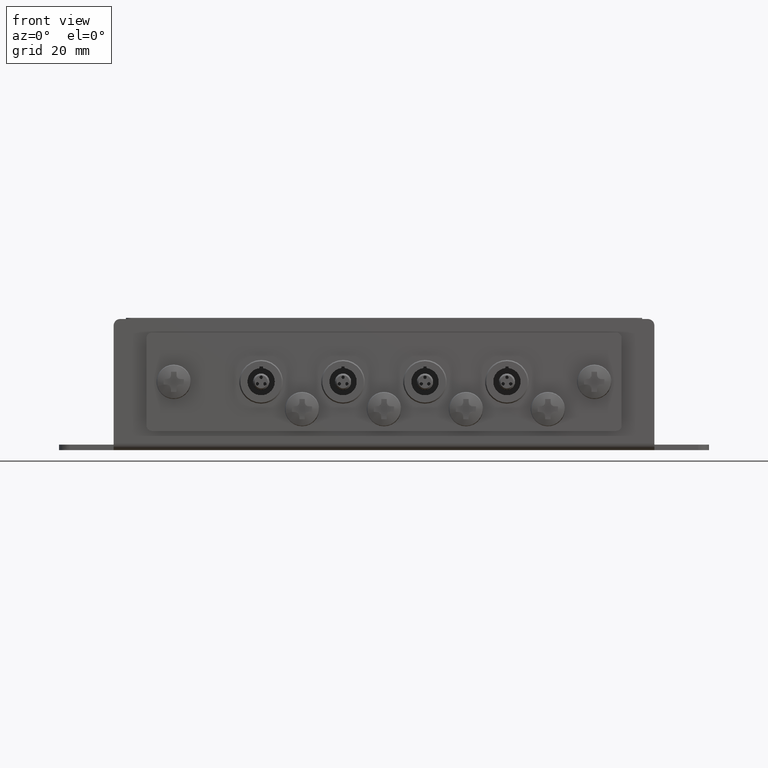
[diagram: clean part render]
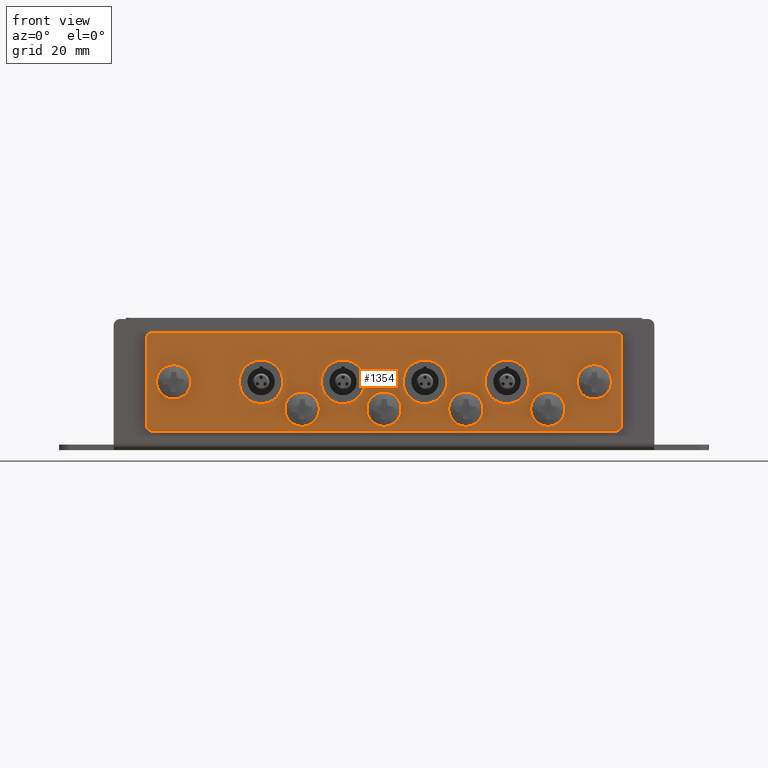
[diagram: same view with one face highlighted and labeled with its STEP entity id]
A machine part, front view. The second image highlights one B-rep face of the part: STEP entity #1354.
In plain terms, the highlighted planar face has unit normal (-0, 1, 0).
Its self-contained STEP definition (entity closure, byte-faithful):
#1354 = ADVANCED_FACE( '', ( #2887, #2888, #2889, #2890, #2891, #2892, #2893, #2894, #2895, #2896, #2897 ), #2898, .F. );
#2887 = FACE_BOUND( '', #4522, .T. );
#2888 = FACE_BOUND( '', #4523, .T. );
#2889 = FACE_BOUND( '', #4524, .T. );
#2890 = FACE_BOUND( '', #4525, .T. );
#2891 = FACE_BOUND( '', #4526, .T. );
#2892 = FACE_BOUND( '', #4527, .T. );
#2893 = FACE_BOUND( '', #4528, .T. );
#2894 = FACE_BOUND( '', #4529, .T. );
#2895 = FACE_OUTER_BOUND( '', #4530, .T. );
#2896 = FACE_BOUND( '', #4531, .T. );
#2897 = FACE_BOUND( '', #4532, .T. );
#2898 = PLANE( '', #4533 );
#4522 = EDGE_LOOP( '', ( #8486 ) );
#4523 = EDGE_LOOP( '', ( #8487 ) );
#4524 = EDGE_LOOP( '', ( #8488 ) );
#4525 = EDGE_LOOP( '', ( #8489 ) );
#4526 = EDGE_LOOP( '', ( #8490 ) );
#4527 = EDGE_LOOP( '', ( #8491 ) );
#4528 = EDGE_LOOP( '', ( #8492 ) );
#4529 = EDGE_LOOP( '', ( #8493 ) );
#4530 = EDGE_LOOP( '', ( #8494, #8495, #8496, #8497, #8498, #8499, #8500, #8501 ) );
#4531 = EDGE_LOOP( '', ( #8502 ) );
#4532 = EDGE_LOOP( '', ( #8503 ) );
#4533 = AXIS2_PLACEMENT_3D( '', #8504, #8505, #8506 );
#8486 = ORIENTED_EDGE( '', *, *, #9854, .T. );
#8487 = ORIENTED_EDGE( '', *, *, #9231, .T. );
#8488 = ORIENTED_EDGE( '', *, *, #9566, .T. );
#8489 = ORIENTED_EDGE( '', *, *, #9423, .T. );
#8490 = ORIENTED_EDGE( '', *, *, #10608, .T. );
#8491 = ORIENTED_EDGE( '', *, *, #10816, .T. );
#8492 = ORIENTED_EDGE( '', *, *, #10761, .F. );
#8493 = ORIENTED_EDGE( '', *, *, #10621, .F. );
#8494 = ORIENTED_EDGE( '', *, *, #10549, .F. );
#8495 = ORIENTED_EDGE( '', *, *, #10338, .F. );
#8496 = ORIENTED_EDGE( '', *, *, #10421, .F. );
#8497 = ORIENTED_EDGE( '', *, *, #10636, .F. );
#8498 = ORIENTED_EDGE( '', *, *, #10817, .F. );
#8499 = ORIENTED_EDGE( '', *, *, #10280, .F. );
#8500 = ORIENTED_EDGE( '', *, *, #10763, .F. );
#8501 = ORIENTED_EDGE( '', *, *, #10265, .F. );
#8502 = ORIENTED_EDGE( '', *, *, #10661, .F. );
#8503 = ORIENTED_EDGE( '', *, *, #9285, .F. );
#8504 = CARTESIAN_POINT( '', ( -42.5000000000000, -21.5999855000000, -3.49999999999999 ) );
#8505 = DIRECTION( '', ( -0.000000000000000, 1.00000000000000, 0.000000000000000 ) );
#8506 = DIRECTION( '', ( 1.27436307449798E-016, 0.000000000000000, 1.00000000000000 ) );
#9231 = EDGE_CURVE( '', #10948, #10948, #10949, .T. );
#9285 = EDGE_CURVE( '', #11048, #11048, #11049, .F. );
#9423 = EDGE_CURVE( '', #11291, #11291, #11292, .T. );
#9566 = EDGE_CURVE( '', #11539, #11539, #11540, .T. );
#9854 = EDGE_CURVE( '', #12020, #12020, #12021, .T. );
#10265 = EDGE_CURVE( '', #12652, #12654, #12655, .T. );
#10280 = EDGE_CURVE( '', #12671, #12673, #12674, .T. );
#10338 = EDGE_CURVE( '', #12754, #12756, #12757, .T. );
#10421 = EDGE_CURVE( '', #12867, #12754, #12869, .T. );
#10549 = EDGE_CURVE( '', #12756, #12652, #13030, .T. );
#10608 = EDGE_CURVE( '', #13104, #13104, #13105, .T. );
#10621 = EDGE_CURVE( '', #13122, #13122, #13123, .F. );
#10636 = EDGE_CURVE( '', #13139, #12867, #13141, .T. );
#10661 = EDGE_CURVE( '', #13171, #13171, #13172, .F. );
#10761 = EDGE_CURVE( '', #13290, #13290, #13291, .F. );
#10763 = EDGE_CURVE( '', #12654, #12671, #13293, .T. );
#10816 = EDGE_CURVE( '', #13353, #13353, #13354, .T. );
#10817 = EDGE_CURVE( '', #12673, #13139, #13355, .T. );
#10948 = VERTEX_POINT( '', #13499 );
#10949 = CIRCLE( '', #13500, 3.15010091781400 );
#11048 = VERTEX_POINT( '', #13666 );
#11049 = CIRCLE( '', #13667, 4.00001400000000 );
#11291 = VERTEX_POINT( '', #14022 );
#11292 = CIRCLE( '', #14023, 3.15010091781400 );
#11539 = VERTEX_POINT( '', #14428 );
#11540 = CIRCLE( '', #14429, 3.15010091781400 );
#12020 = VERTEX_POINT( '', #15145 );
#12021 = CIRCLE( '', #15146, 3.15010091781400 );
#12652 = VERTEX_POINT( '', #16202 );
#12654 = VERTEX_POINT( '', #16205 );
#12655 = LINE( '', #16206, #16207 );
#12671 = VERTEX_POINT( '', #16229 );
#12673 = VERTEX_POINT( '', #16232 );
#12674 = LINE( '', #16233, #16234 );
#12754 = VERTEX_POINT( '', #16365 );
#12756 = VERTEX_POINT( '', #16368 );
#12757 = LINE( '', #16369, #16370 );
#12867 = VERTEX_POINT( '', #16554 );
#12869 = CIRCLE( '', #16557, 1.00000000000000 );
#13030 = CIRCLE( '', #16844, 1.00000000000000 );
#13104 = VERTEX_POINT( '', #16982 );
#13105 = CIRCLE( '', #16983, 3.15010091781400 );
#13122 = VERTEX_POINT( '', #17014 );
#13123 = CIRCLE( '', #17015, 4.00001400000000 );
#13139 = VERTEX_POINT( '', #17033 );
#13141 = LINE( '', #17036, #17037 );
#13171 = VERTEX_POINT( '', #17082 );
#13172 = CIRCLE( '', #17083, 4.00001400000000 );
#13290 = VERTEX_POINT( '', #17276 );
#13291 = CIRCLE( '', #17277, 4.00001400000000 );
#13293 = CIRCLE( '', #17279, 0.999999999999999 );
#13353 = VERTEX_POINT( '', #17354 );
#13354 = CIRCLE( '', #17355, 3.15010091781400 );
#13355 = CIRCLE( '', #17356, 1.00000000000000 );
#13499 = CARTESIAN_POINT( '', ( 15.0002905000000, -21.5999855000000, -13.3497660821860 ) );
#13500 = AXIS2_PLACEMENT_3D( '', #17518, #17519, #17520 );
#13666 = CARTESIAN_POINT( '', ( -22.4999090000000, -21.5999855000000, -7.50006000000000 ) );
#13667 = AXIS2_PLACEMENT_3D( '', #17590, #17591, #17592 );
#14022 = CARTESIAN_POINT( '', ( -14.9997735000000, -21.5999855000000, -13.3497660821860 ) );
#14023 = AXIS2_PLACEMENT_3D( '', #17778, #17779, #17780 );
#14428 = CARTESIAN_POINT( '', ( 0.000172499999999409, -21.5999855000000, -13.3497660821860 ) );
#14429 = AXIS2_PLACEMENT_3D( '', #17923, #17924, #17925 );
#15145 = CARTESIAN_POINT( '', ( 30.0002365000000, -21.5999855000000, -13.3497660821860 ) );
#15146 = AXIS2_PLACEMENT_3D( '', #18265, #18266, #18267 );
#16202 = CARTESIAN_POINT( '', ( -42.5000000000000, -21.5999855000000, -2.50000000000000 ) );
#16205 = CARTESIAN_POINT( '', ( 42.5000000000000, -21.5999855000000, -2.50000000000001 ) );
#16206 = CARTESIAN_POINT( '', ( -42.5000000000000, -21.5999855000000, -2.50000000000000 ) );
#16207 = VECTOR( '', #18653, 1000.00000000000 );
#16229 = CARTESIAN_POINT( '', ( 43.5000000000000, -21.5999855000000, -3.50000000000001 ) );
#16232 = CARTESIAN_POINT( '', ( 43.5000000000000, -21.5999855000000, -19.5000000000000 ) );
#16233 = CARTESIAN_POINT( '', ( 43.5000000000000, -21.5999855000000, -3.50000000000001 ) );
#16234 = VECTOR( '', #18670, 1000.00000000000 );
#16365 = CARTESIAN_POINT( '', ( -43.5000000000000, -21.5999855000000, -19.5000000000000 ) );
#16368 = CARTESIAN_POINT( '', ( -43.5000000000000, -21.5999855000000, -3.49999999999999 ) );
#16369 = CARTESIAN_POINT( '', ( -43.5000000000000, -21.5999855000000, -19.5000000000000 ) );
#16370 = VECTOR( '', #18722, 1000.00000000000 );
#16554 = CARTESIAN_POINT( '', ( -42.5000000000000, -21.5999855000000, -20.5000000000000 ) );
#16557 = AXIS2_PLACEMENT_3D( '', #18793, #18794, #18795 );
#16844 = AXIS2_PLACEMENT_3D( '', #18917, #18918, #18919 );
#16982 = CARTESIAN_POINT( '', ( 38.5002335000000, -21.5999855000000, -8.34989908218600 ) );
#16983 = AXIS2_PLACEMENT_3D( '', #18971, #18972, #18973 );
#17014 = CARTESIAN_POINT( '', ( 22.5000910000000, -21.5999855000000, -7.50006000000000 ) );
#17015 = AXIS2_PLACEMENT_3D( '', #18987, #18988, #18989 );
#17033 = CARTESIAN_POINT( '', ( 42.5000000000000, -21.5999855000000, -20.5000000000000 ) );
#17036 = CARTESIAN_POINT( '', ( 42.5000000000000, -21.5999855000000, -20.5000000000000 ) );
#17037 = VECTOR( '', #19005, 1000.00000000000 );
#17082 = CARTESIAN_POINT( '', ( 7.50009100000000, -21.5999855000000, -7.50006000000000 ) );
#17083 = AXIS2_PLACEMENT_3D( '', #19032, #19033, #19034 );
#17276 = CARTESIAN_POINT( '', ( -7.49990900000000, -21.5999855000000, -7.50006000000000 ) );
#17277 = AXIS2_PLACEMENT_3D( '', #19133, #19134, #19135 );
#17279 = AXIS2_PLACEMENT_3D( '', #19136, #19137, #19138 );
#17354 = CARTESIAN_POINT( '', ( -38.4998035000000, -21.5999855000000, -8.34989908218600 ) );
#17355 = AXIS2_PLACEMENT_3D( '', #19181, #19182, #19183 );
#17356 = AXIS2_PLACEMENT_3D( '', #19184, #19185, #19186 );
#17518 = CARTESIAN_POINT( '', ( 15.0002905000000, -21.5999855000000, -16.4998670000000 ) );
#17519 = DIRECTION( '', ( -0.000000000000000, 1.00000000000000, 0.000000000000000 ) );
#17520 = DIRECTION( '', ( 0.000000000000000, -0.000000000000000, 1.00000000000000 ) );
#17590 = CARTESIAN_POINT( '', ( -22.4999090000000, -21.5999855000000, -11.5000740000000 ) );
#17591 = DIRECTION( '', ( -0.000000000000000, 1.00000000000000, 0.000000000000000 ) );
#17592 = DIRECTION( '', ( 0.000000000000000, -0.000000000000000, 1.00000000000000 ) );
#17778 = CARTESIAN_POINT( '', ( -14.9997735000000, -21.5999855000000, -16.4998670000000 ) );
#17779 = DIRECTION( '', ( -0.000000000000000, 1.00000000000000, 0.000000000000000 ) );
#17780 = DIRECTION( '', ( 0.000000000000000, -0.000000000000000, 1.00000000000000 ) );
#17923 = CARTESIAN_POINT( '', ( 0.000172499999999409, -21.5999855000000, -16.4998670000000 ) );
#17924 = DIRECTION( '', ( -0.000000000000000, 1.00000000000000, 0.000000000000000 ) );
#17925 = DIRECTION( '', ( 0.000000000000000, -0.000000000000000, 1.00000000000000 ) );
#18265 = CARTESIAN_POINT( '', ( 30.0002365000000, -21.5999855000000, -16.4998670000000 ) );
#18266 = DIRECTION( '', ( -0.000000000000000, 1.00000000000000, 0.000000000000000 ) );
#18267 = DIRECTION( '', ( 0.000000000000000, -0.000000000000000, 1.00000000000000 ) );
#18653 = DIRECTION( '', ( 1.00000000000000, 0.000000000000000, -1.27436307449798E-016 ) );
#18670 = DIRECTION( '', ( -1.83690953073357E-016, 0.000000000000000, -1.00000000000000 ) );
#18722 = DIRECTION( '', ( 1.83690953073357E-016, 0.000000000000000, 1.00000000000000 ) );
#18793 = CARTESIAN_POINT( '', ( -42.5000000000000, -21.5999855000000, -19.5000000000000 ) );
#18794 = DIRECTION( '', ( 0.000000000000000, 1.00000000000000, 0.000000000000000 ) );
#18795 = DIRECTION( '', ( -1.27436307449798E-016, 0.000000000000000, -1.00000000000000 ) );
#18917 = CARTESIAN_POINT( '', ( -42.5000000000000, -21.5999855000000, -3.49999999999999 ) );
#18918 = DIRECTION( '', ( 0.000000000000000, 1.00000000000000, 0.000000000000000 ) );
#18919 = DIRECTION( '', ( -1.00000000000000, 0.000000000000000, -3.06244561544404E-016 ) );
#18971 = CARTESIAN_POINT( '', ( 38.5002335000000, -21.5999855000000, -11.5000000000000 ) );
#18972 = DIRECTION( '', ( -0.000000000000000, 1.00000000000000, 0.000000000000000 ) );
#18973 = DIRECTION( '', ( 0.000000000000000, -0.000000000000000, 1.00000000000000 ) );
#18987 = CARTESIAN_POINT( '', ( 22.5000910000000, -21.5999855000000, -11.5000740000000 ) );
#18988 = DIRECTION( '', ( -0.000000000000000, 1.00000000000000, 0.000000000000000 ) );
#18989 = DIRECTION( '', ( 0.000000000000000, -0.000000000000000, 1.00000000000000 ) );
#19005 = DIRECTION( '', ( -1.00000000000000, 0.000000000000000, 1.27436307449798E-016 ) );
#19032 = CARTESIAN_POINT( '', ( 7.50009100000000, -21.5999855000000, -11.5000740000000 ) );
#19033 = DIRECTION( '', ( -0.000000000000000, 1.00000000000000, 0.000000000000000 ) );
#19034 = DIRECTION( '', ( 0.000000000000000, -0.000000000000000, 1.00000000000000 ) );
#19133 = CARTESIAN_POINT( '', ( -7.49990900000000, -21.5999855000000, -11.5000740000000 ) );
#19134 = DIRECTION( '', ( -0.000000000000000, 1.00000000000000, 0.000000000000000 ) );
#19135 = DIRECTION( '', ( 0.000000000000000, -0.000000000000000, 1.00000000000000 ) );
#19136 = CARTESIAN_POINT( '', ( 42.5000000000000, -21.5999855000000, -3.50000000000001 ) );
#19137 = DIRECTION( '', ( -0.000000000000000, 1.00000000000000, 0.000000000000000 ) );
#19138 = DIRECTION( '', ( 1.27436307449798E-016, 0.000000000000000, 1.00000000000000 ) );
#19181 = CARTESIAN_POINT( '', ( -38.4998035000000, -21.5999855000000, -11.5000000000000 ) );
#19182 = DIRECTION( '', ( -0.000000000000000, 1.00000000000000, 0.000000000000000 ) );
#19183 = DIRECTION( '', ( 0.000000000000000, -0.000000000000000, 1.00000000000000 ) );
#19184 = CARTESIAN_POINT( '', ( 42.5000000000000, -21.5999855000000, -19.5000000000000 ) );
#19185 = DIRECTION( '', ( 0.000000000000000, 1.00000000000000, 0.000000000000000 ) );
#19186 = DIRECTION( '', ( 1.00000000000000, 0.000000000000000, -1.27436307449798E-016 ) );